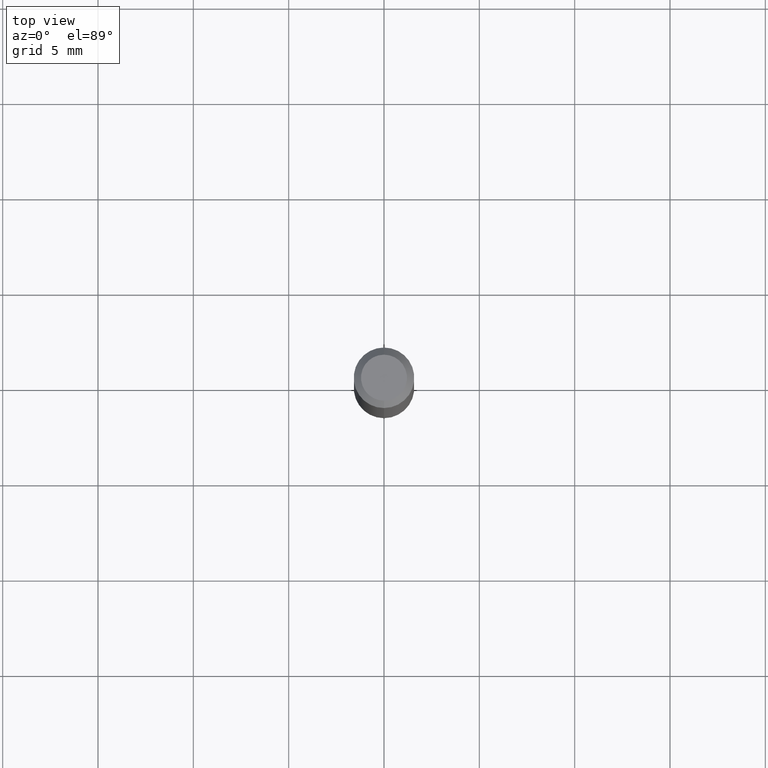
[diagram: clean part render]
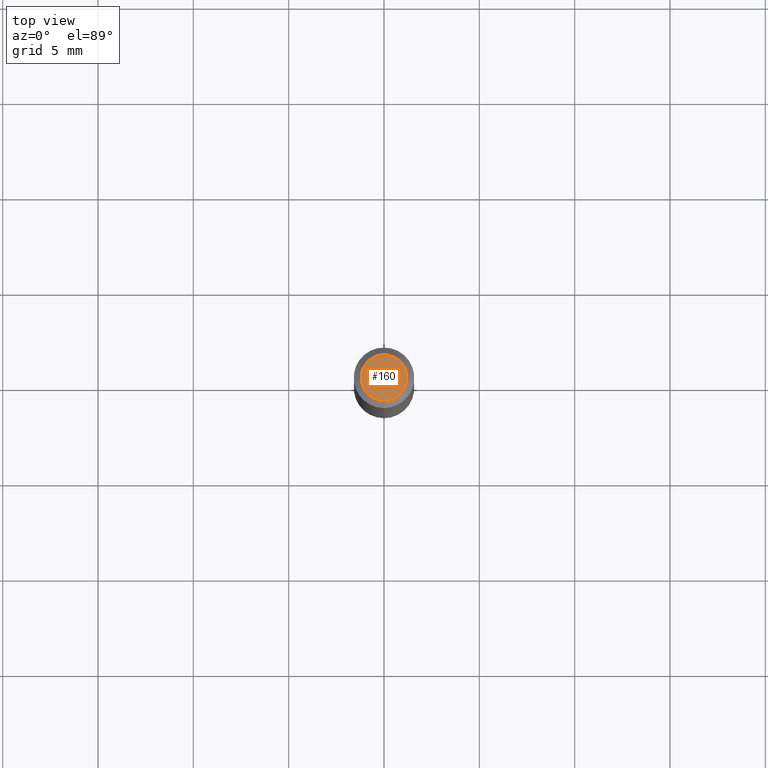
[diagram: same view with one face highlighted and labeled with its STEP entity id]
A machine part, top view. The second image highlights one B-rep face of the part: STEP entity #160.
In plain terms, the highlighted planar face has unit normal (0, -0, -1).
Its self-contained STEP definition (entity closure, byte-faithful):
#2 = DIRECTION ( 'NONE',  ( 6.982962677686265922E-15, 1.000000000000000000, -3.491458252131256099E-15 ) ) ;
#8 = CARTESIAN_POINT ( 'NONE',  ( -5.856631842478245107E-45, 8.361607690055266476E-31, 2.394875460690721585E-16 ) ) ;
#11 = DIRECTION ( 'NONE',  ( 2.445484927549883858E-29, -3.491458252131256099E-15, -1.000000000000000000 ) ) ;
#36 = VERTEX_POINT ( 'NONE', #358 ) ;
#103 = AXIS2_PLACEMENT_3D ( 'NONE', #484, #11, #2 ) ;
#104 = DIRECTION ( 'NONE',  ( -6.982962677686266711E-15, -1.000000000000000000, 3.491458252131256099E-15 ) ) ;
#142 = EDGE_CURVE ( 'NONE', #36, #208, #197, .T. ) ;
#146 = EDGE_CURVE ( 'NONE', #208, #36, #235, .T. ) ;
#160 = ADVANCED_FACE ( 'NONE', ( #379 ), #199, .F. ) ;
#176 = AXIS2_PLACEMENT_3D ( 'NONE', #414, #268, #104 ) ;
#197 = CIRCLE ( 'NONE', #439, 0.04749999999999999362 ) ;
#199 = PLANE ( 'NONE',  #103 ) ;
#208 = VERTEX_POINT ( 'NONE', #452 ) ;
#235 = CIRCLE ( 'NONE', #176, 0.04749999999999999362 ) ;
#268 = DIRECTION ( 'NONE',  ( -2.445484927549883858E-29, 3.491458252131256494E-15, 1.000000000000000000 ) ) ;
#345 = DIRECTION ( 'NONE',  ( -6.982962677686266711E-15, -1.000000000000000000, 3.491458252131256099E-15 ) ) ;
#358 = CARTESIAN_POINT ( 'NONE',  ( -3.773273898774340269E-16, -0.04749999999999999362, 4.053318130453067966E-16 ) ) ;
#377 = ORIENTED_EDGE ( 'NONE', *, *, #142, .T. ) ;
#379 = FACE_OUTER_BOUND ( 'NONE', #482, .T. ) ;
#414 = CARTESIAN_POINT ( 'NONE',  ( -5.856631842478245107E-45, 8.361607690055266476E-31, 2.394875460690721585E-16 ) ) ;
#439 = AXIS2_PLACEMENT_3D ( 'NONE', #8, #449, #345 ) ;
#449 = DIRECTION ( 'NONE',  ( -2.445484927549883858E-29, 3.491458252131256494E-15, 1.000000000000000000 ) ) ;
#452 = CARTESIAN_POINT ( 'NONE',  ( 3.840629472727447874E-16, 0.04749999999999999362, 7.364327909283752044E-17 ) ) ;
#482 = EDGE_LOOP ( 'NONE', ( #502, #377 ) ) ;
#484 = CARTESIAN_POINT ( 'NONE',  ( 3.316907271900976096E-16, 0.04749999999999999362, -4.610049394169857731E-17 ) ) ;
#502 = ORIENTED_EDGE ( 'NONE', *, *, #146, .T. ) ;